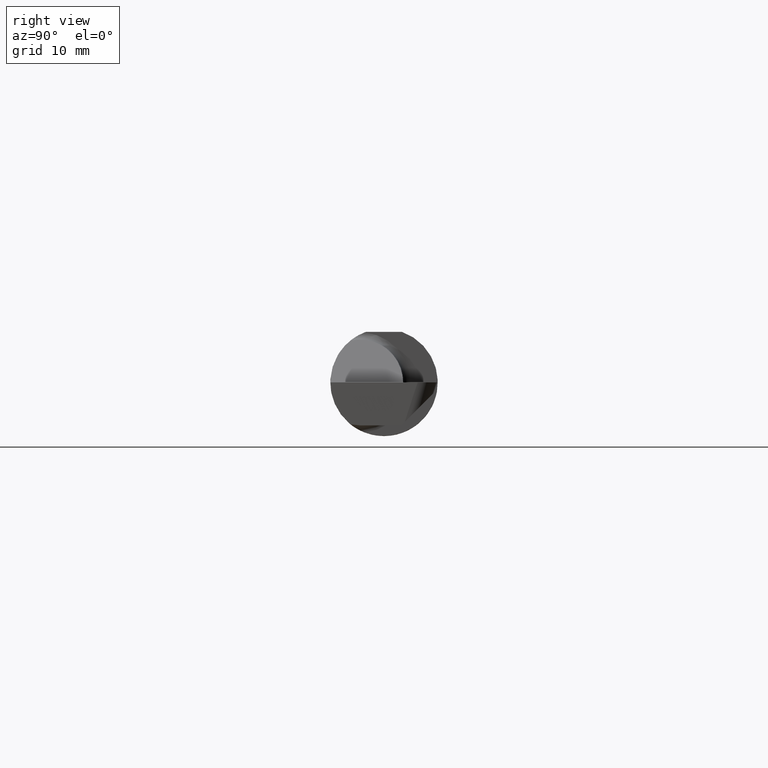
[diagram: clean part render]
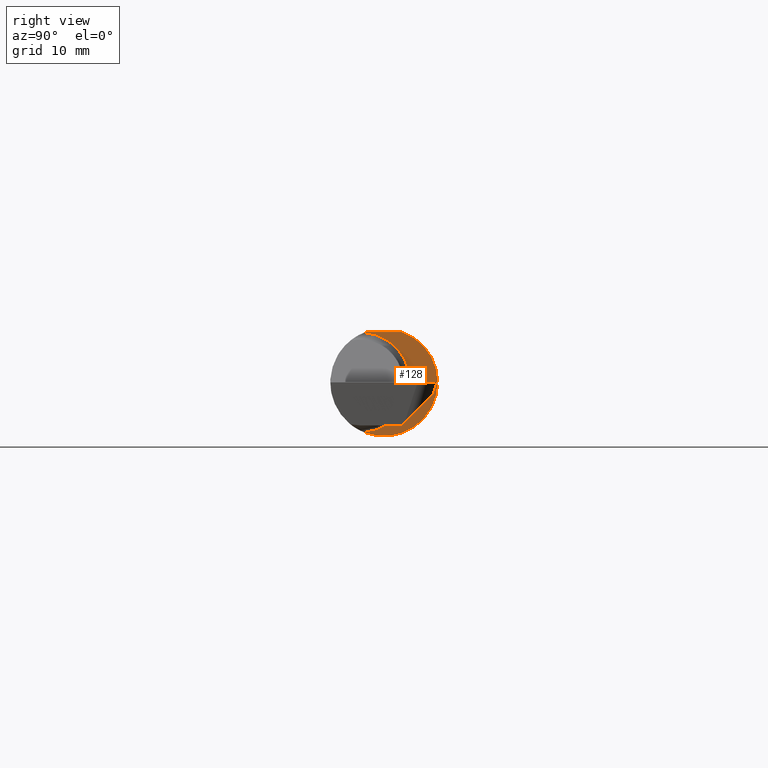
[diagram: same view with one face highlighted and labeled with its STEP entity id]
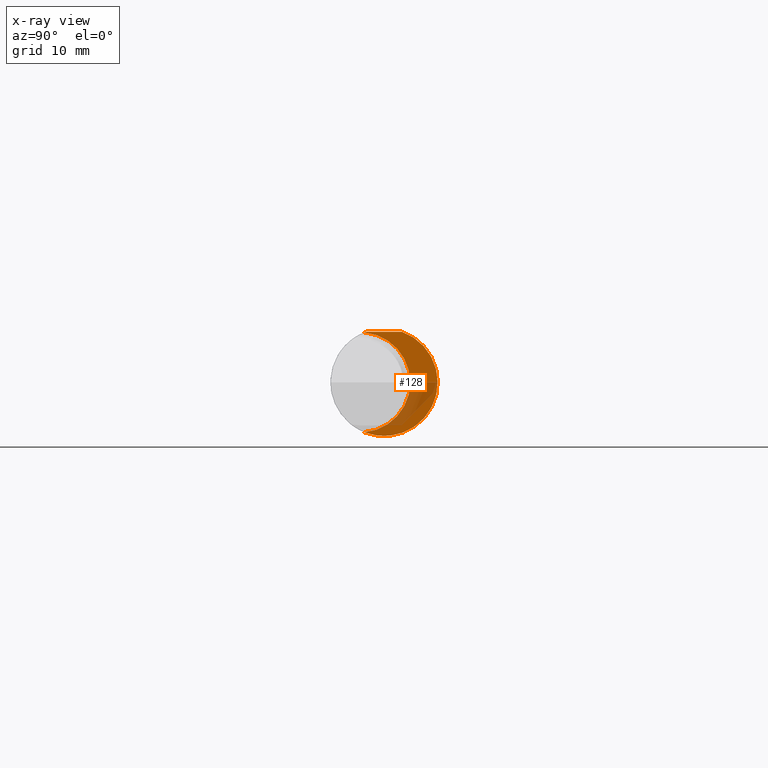
[diagram: x-ray of the same camera — body ghosted, the highlighted face saturated]
A machine part, right view. The second image highlights one B-rep face of the part: STEP entity #128.
The next image is the same camera in x-ray: the body ghosted, the highlighted face saturated — about 28% of this face is hidden behind the body in this view.
In plain terms, the highlighted planar face has unit normal (1, 0, 0).
Its self-contained STEP definition (entity closure, byte-faithful):
#5 = PLANE ( 'NONE',  #91 ) ;
#25 = ORIENTED_EDGE ( 'NONE', *, *, #629, .F. ) ;
#31 = LINE ( 'NONE', #303, #620 ) ;
#47 = EDGE_CURVE ( 'NONE', #391, #206, #703, .T. ) ;
#65 = DIRECTION ( 'NONE',  ( 0.000000000000000000, 1.000000000000000000, 0.000000000000000000 ) ) ;
#85 = CARTESIAN_POINT ( 'NONE',  ( 2.075000000000000178, -0.08335000000000010456, 0.000000000000000000 ) ) ;
#91 = AXIS2_PLACEMENT_3D ( 'NONE', #175, #386, #218 ) ;
#95 = VERTEX_POINT ( 'NONE', #278 ) ;
#106 = VERTEX_POINT ( 'NONE', #171 ) ;
#109 = ORIENTED_EDGE ( 'NONE', *, *, #568, .T. ) ;
#113 = DIRECTION ( 'NONE',  ( 1.000000000000000000, 3.417954624266474541E-16, 0.000000000000000000 ) ) ;
#123 = AXIS2_PLACEMENT_3D ( 'NONE', #589, #113, #65 ) ;
#128 = ADVANCED_FACE ( 'NONE', ( #593 ), #5, .T. ) ;
#140 = DIRECTION ( 'NONE',  ( -3.417954624266474541E-16, 1.000000000000000000, 0.000000000000000000 ) ) ;
#159 = CARTESIAN_POINT ( 'NONE',  ( 2.075000000000000178, -0.06851976604679038685, 0.1743704796142199753 ) ) ;
#171 = CARTESIAN_POINT ( 'NONE',  ( 2.075000000000000178, 0.06325108694718235836, 0.1763499999999999235 ) ) ;
#175 = CARTESIAN_POINT ( 'NONE',  ( 2.075000000000000178, 0.1873499999999999610, 0.000000000000000000 ) ) ;
#201 = EDGE_LOOP ( 'NONE', ( #535, #25, #109, #263 ) ) ;
#206 = VERTEX_POINT ( 'NONE', #511 ) ;
#218 = DIRECTION ( 'NONE',  ( -3.417954624266474541E-16, 1.000000000000000000, 0.000000000000000000 ) ) ;
#263 = ORIENTED_EDGE ( 'NONE', *, *, #47, .T. ) ;
#278 = CARTESIAN_POINT ( 'NONE',  ( 2.075000000000000178, -0.06325108694718283020, 0.1763499999999999235 ) ) ;
#302 = DIRECTION ( 'NONE',  ( -1.000000000000000000, -3.417954624266474541E-16, -0.000000000000000000 ) ) ;
#303 = CARTESIAN_POINT ( 'NONE',  ( 2.075000000000000178, 0.1873499999999995724, 0.1763499999999999235 ) ) ;
#307 = CIRCLE ( 'NONE', #123, 0.1873499999999999888 ) ;
#386 = DIRECTION ( 'NONE',  ( 1.000000000000000000, 3.417954624266474541E-16, 0.000000000000000000 ) ) ;
#391 = VERTEX_POINT ( 'NONE', #159 ) ;
#414 = AXIS2_PLACEMENT_3D ( 'NONE', #524, #515, #474 ) ;
#416 = EDGE_CURVE ( 'NONE', #206, #106, #467, .T. ) ;
#467 = CIRCLE ( 'NONE', #414, 0.1873499999999999888 ) ;
#474 = DIRECTION ( 'NONE',  ( 0.000000000000000000, 1.000000000000000000, 0.000000000000000000 ) ) ;
#509 = DIRECTION ( 'NONE',  ( 0.000000000000000000, -1.000000000000000000, 0.000000000000000000 ) ) ;
#511 = CARTESIAN_POINT ( 'NONE',  ( 2.075000000000000178, -0.06851976604679038685, -0.1743704796142199753 ) ) ;
#515 = DIRECTION ( 'NONE',  ( 1.000000000000000000, 3.417954624266474541E-16, 0.000000000000000000 ) ) ;
#524 = CARTESIAN_POINT ( 'NONE',  ( 2.075000000000000178, 0.000000000000000000, 0.000000000000000000 ) ) ;
#535 = ORIENTED_EDGE ( 'NONE', *, *, #416, .T. ) ;
#568 = EDGE_CURVE ( 'NONE', #95, #391, #307, .T. ) ;
#589 = CARTESIAN_POINT ( 'NONE',  ( 2.075000000000000178, 0.000000000000000000, 0.000000000000000000 ) ) ;
#593 = FACE_OUTER_BOUND ( 'NONE', #201, .T. ) ;
#618 = AXIS2_PLACEMENT_3D ( 'NONE', #85, #302, #509 ) ;
#620 = VECTOR ( 'NONE', #140, 39.37007874015748143 ) ;
#629 = EDGE_CURVE ( 'NONE', #95, #106, #31, .T. ) ;
#703 = CIRCLE ( 'NONE', #618, 0.1750000000000001277 ) ;